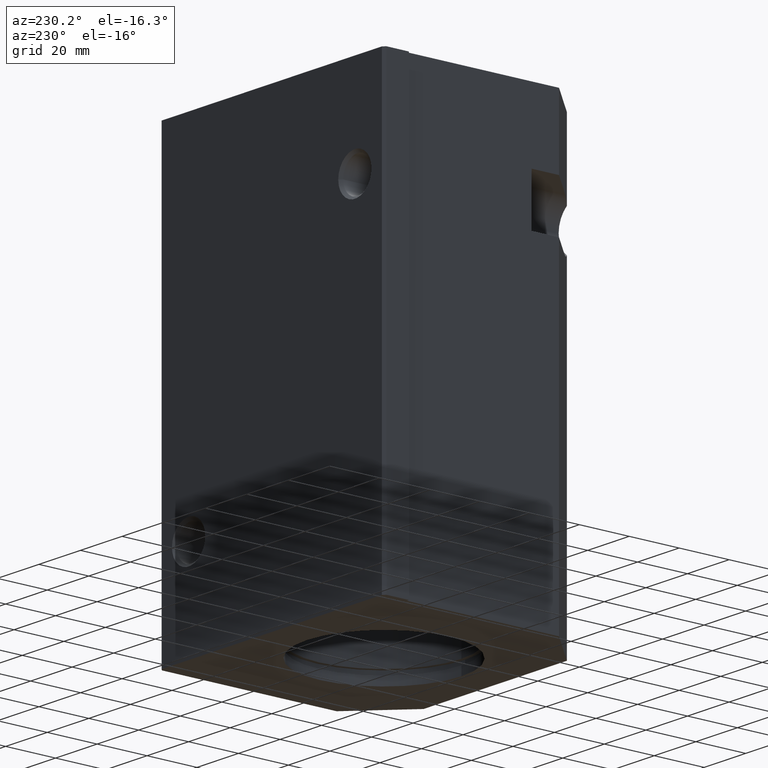
[diagram: clean part render]
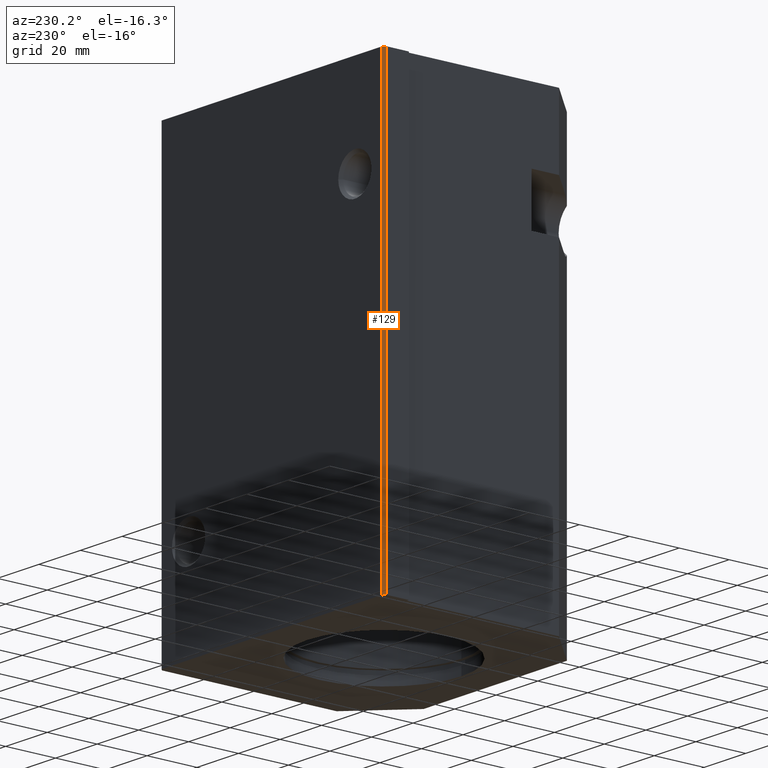
[diagram: same view with one face highlighted and labeled with its STEP entity id]
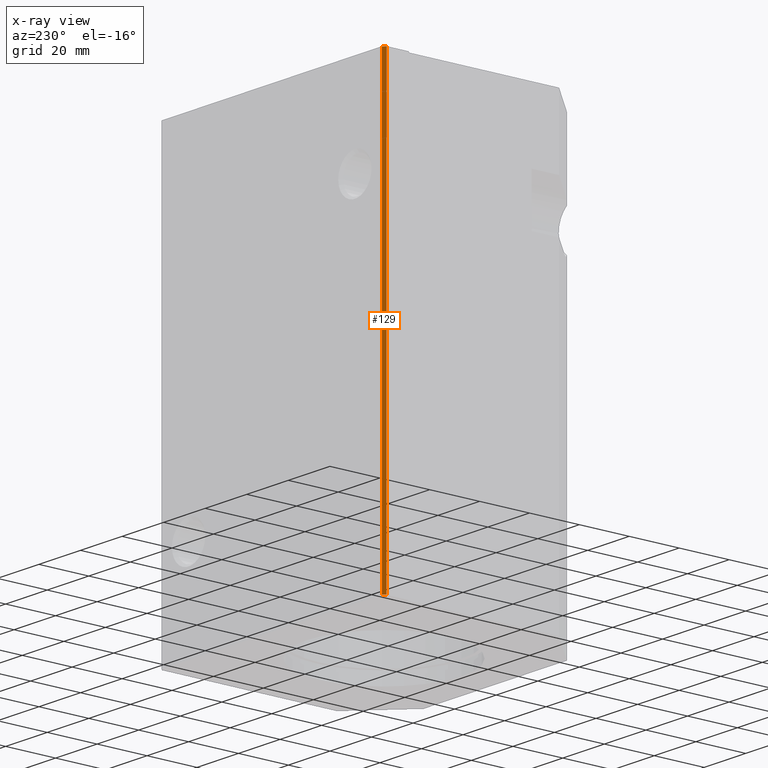
[diagram: x-ray of the same camera — body ghosted, the highlighted face saturated]
A machine part, auxiliary view. The second image highlights one B-rep face of the part: STEP entity #129.
The next image is the same camera in x-ray: the body ghosted, the highlighted face saturated — about 0% of this face is hidden behind the body in this view.
In plain terms, the highlighted planar face has unit normal (-0.7071, 0.7071, 0).
Its self-contained STEP definition (entity closure, byte-faithful):
#129 = ADVANCED_FACE( '', ( #260 ), #261, .T. );
#260 = FACE_OUTER_BOUND( '', #403, .T. );
#261 = PLANE( '', #404 );
#403 = EDGE_LOOP( '', ( #826, #827, #828, #829 ) );
#404 = AXIS2_PLACEMENT_3D( '', #830, #831, #832 );
#826 = ORIENTED_EDGE( '', *, *, #1046, .T. );
#827 = ORIENTED_EDGE( '', *, *, #1047, .F. );
#828 = ORIENTED_EDGE( '', *, *, #1048, .T. );
#829 = ORIENTED_EDGE( '', *, *, #1049, .T. );
#830 = CARTESIAN_POINT( '', ( -54.0000000000000, 89.0000000000000, 0.000000000000000 ) );
#831 = DIRECTION( '', ( -0.707106781186548, 0.707106781186548, 0.000000000000000 ) );
#832 = DIRECTION( '', ( -0.707106781186548, -0.707106781186548, 0.000000000000000 ) );
#1046 = EDGE_CURVE( '', #1285, #1286, #1287, .T. );
#1047 = EDGE_CURVE( '', #1288, #1286, #1289, .T. );
#1048 = EDGE_CURVE( '', #1288, #1290, #1291, .T. );
#1049 = EDGE_CURVE( '', #1290, #1285, #1292, .T. );
#1285 = VERTEX_POINT( '', #1649 );
#1286 = VERTEX_POINT( '', #1650 );
#1287 = LINE( '', #1651, #1652 );
#1288 = VERTEX_POINT( '', #1653 );
#1289 = LINE( '', #1654, #1655 );
#1290 = VERTEX_POINT( '', #1656 );
#1291 = LINE( '', #1657, #1658 );
#1292 = LINE( '', #1659, #1660 );
#1649 = CARTESIAN_POINT( '', ( -54.0000000000000, 89.0000000000000, 176.000000000000 ) );
#1650 = CARTESIAN_POINT( '', ( -53.0000000000000, 90.0000000000000, 176.000000000000 ) );
#1651 = CARTESIAN_POINT( '', ( -53.0000000000000, 90.0000000000000, 176.000000000000 ) );
#1652 = VECTOR( '', #1952, 1.00000000000000 );
#1653 = CARTESIAN_POINT( '', ( -53.0000000000000, 90.0000000000000, 0.000000000000000 ) );
#1654 = CARTESIAN_POINT( '', ( -53.0000000000000, 90.0000000000000, 0.000000000000000 ) );
#1655 = VECTOR( '', #1953, 1.00000000000000 );
#1656 = CARTESIAN_POINT( '', ( -54.0000000000000, 89.0000000000000, 0.000000000000000 ) );
#1657 = CARTESIAN_POINT( '', ( -53.0000000000000, 90.0000000000000, 0.000000000000000 ) );
#1658 = VECTOR( '', #1954, 1.00000000000000 );
#1659 = CARTESIAN_POINT( '', ( -54.0000000000000, 89.0000000000000, 0.000000000000000 ) );
#1660 = VECTOR( '', #1955, 1.00000000000000 );
#1952 = DIRECTION( '', ( 0.707106781186547, 0.707106781186547, 0.000000000000000 ) );
#1953 = DIRECTION( '', ( 0.000000000000000, 0.000000000000000, 1.00000000000000 ) );
#1954 = DIRECTION( '', ( -0.707106781186548, -0.707106781186548, 0.000000000000000 ) );
#1955 = DIRECTION( '', ( 0.000000000000000, 0.000000000000000, 1.00000000000000 ) );